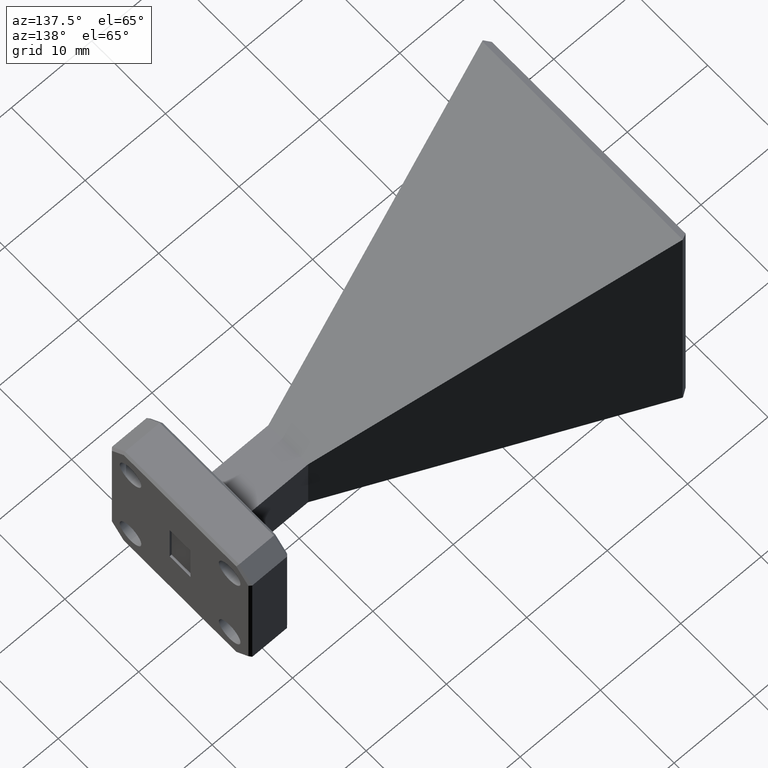
[diagram: clean part render]
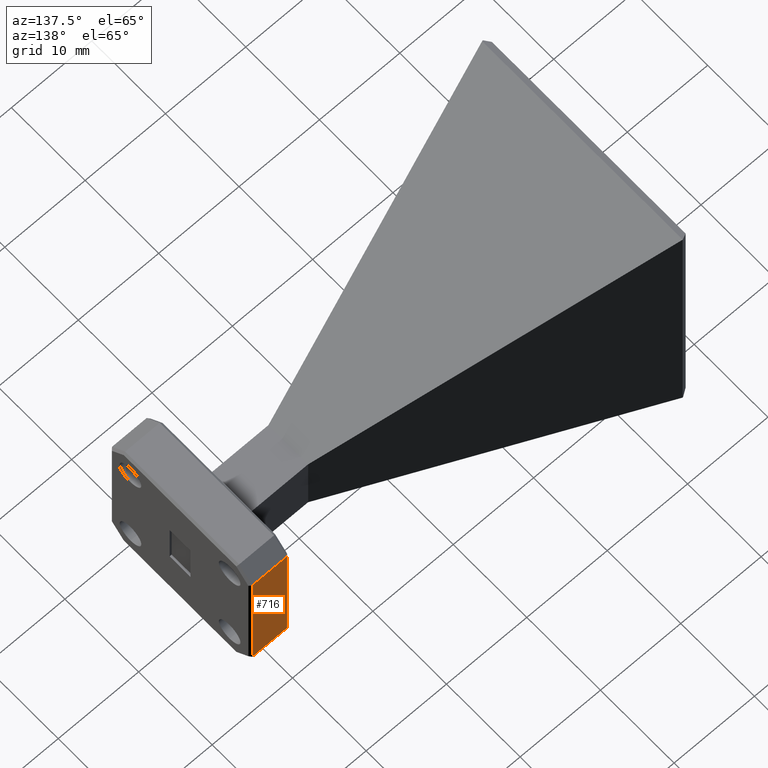
[diagram: same view with one face highlighted and labeled with its STEP entity id]
A machine part, auxiliary view. The second image highlights one B-rep face of the part: STEP entity #716.
In plain terms, the highlighted planar face has unit normal (0, -1, 0).
Its self-contained STEP definition (entity closure, byte-faithful):
#37 = CARTESIAN_POINT ( 'NONE',  ( 0.1800000000000001000, 0.3750000000000000600, 0.3050000000000004900 ) ) ;
#138 = DIRECTION ( 'NONE',  ( 1.000000000000000000, 0.0000000000000000000, 0.0000000000000000000 ) ) ;
#142 = LINE ( 'NONE', #1240, #1361 ) ;
#314 = ORIENTED_EDGE ( 'NONE', *, *, #484, .T. ) ;
#359 = CARTESIAN_POINT ( 'NONE',  ( 0.009999999999999892700, 0.3750000000000000600, 0.3750000000000000600 ) ) ;
#377 = DIRECTION ( 'NONE',  ( 0.0000000000000000000, 0.0000000000000000000, -1.000000000000000000 ) ) ;
#422 = VERTEX_POINT ( 'NONE', #1192 ) ;
#424 = CARTESIAN_POINT ( 'NONE',  ( 0.1600000000000000000, 0.3750000000000000600, 0.3750000000000000600 ) ) ;
#469 = DIRECTION ( 'NONE',  ( 0.0000000000000000000, 0.0000000000000000000, 1.000000000000000000 ) ) ;
#484 = EDGE_CURVE ( 'NONE', #422, #1106, #904, .T. ) ;
#552 = VECTOR ( 'NONE', #469, 39.37007874015748100 ) ;
#560 = LINE ( 'NONE', #735, #868 ) ;
#644 = DIRECTION ( 'NONE',  ( 0.0000000000000000000, -1.000000000000000000, 0.0000000000000000000 ) ) ;
#662 = EDGE_CURVE ( 'NONE', #1106, #1263, #1214, .T. ) ;
#686 = CARTESIAN_POINT ( 'NONE',  ( 0.1800000000000001000, 0.3750000000000000600, -0.3050000000000003800 ) ) ;
#714 = ORIENTED_EDGE ( 'NONE', *, *, #1342, .T. ) ;
#716 = ADVANCED_FACE ( 'NONE', ( #1444 ), #778, .F. ) ;
#735 = CARTESIAN_POINT ( 'NONE',  ( 0.1800000000000001000, 0.3750000000000000600, -0.3050000000000003800 ) ) ;
#778 = PLANE ( 'NONE',  #1435 ) ;
#798 = ORIENTED_EDGE ( 'NONE', *, *, #1189, .T. ) ;
#868 = VECTOR ( 'NONE', #377, 39.37007874015748100 ) ;
#904 = LINE ( 'NONE', #359, #552 ) ;
#915 = DIRECTION ( 'NONE',  ( 0.0000000000000000000, -0.0000000000000000000, -1.000000000000000000 ) ) ;
#981 = ORIENTED_EDGE ( 'NONE', *, *, #662, .T. ) ;
#995 = VERTEX_POINT ( 'NONE', #686 ) ;
#1106 = VERTEX_POINT ( 'NONE', #1311 ) ;
#1146 = EDGE_LOOP ( 'NONE', ( #714, #314, #981, #798 ) ) ;
#1189 = EDGE_CURVE ( 'NONE', #1263, #995, #560, .T. ) ;
#1192 = CARTESIAN_POINT ( 'NONE',  ( 0.009999999999999892700, 0.3750000000000000600, -0.3050000000000003800 ) ) ;
#1214 = LINE ( 'NONE', #1368, #1239 ) ;
#1239 = VECTOR ( 'NONE', #138, 39.37007874015748100 ) ;
#1240 = CARTESIAN_POINT ( 'NONE',  ( 0.1600000000000000000, 0.3750000000000000600, -0.3050000000000003800 ) ) ;
#1247 = DIRECTION ( 'NONE',  ( -1.000000000000000000, 0.0000000000000000000, 0.0000000000000000000 ) ) ;
#1263 = VERTEX_POINT ( 'NONE', #37 ) ;
#1311 = CARTESIAN_POINT ( 'NONE',  ( 0.009999999999999892700, 0.3750000000000000600, 0.3050000000000004900 ) ) ;
#1342 = EDGE_CURVE ( 'NONE', #995, #422, #142, .T. ) ;
#1361 = VECTOR ( 'NONE', #1247, 39.37007874015748100 ) ;
#1368 = CARTESIAN_POINT ( 'NONE',  ( 0.1600000000000000000, 0.3750000000000000600, 0.3050000000000004900 ) ) ;
#1435 = AXIS2_PLACEMENT_3D ( 'NONE', #424, #644, #915 ) ;
#1444 = FACE_OUTER_BOUND ( 'NONE', #1146, .T. ) ;